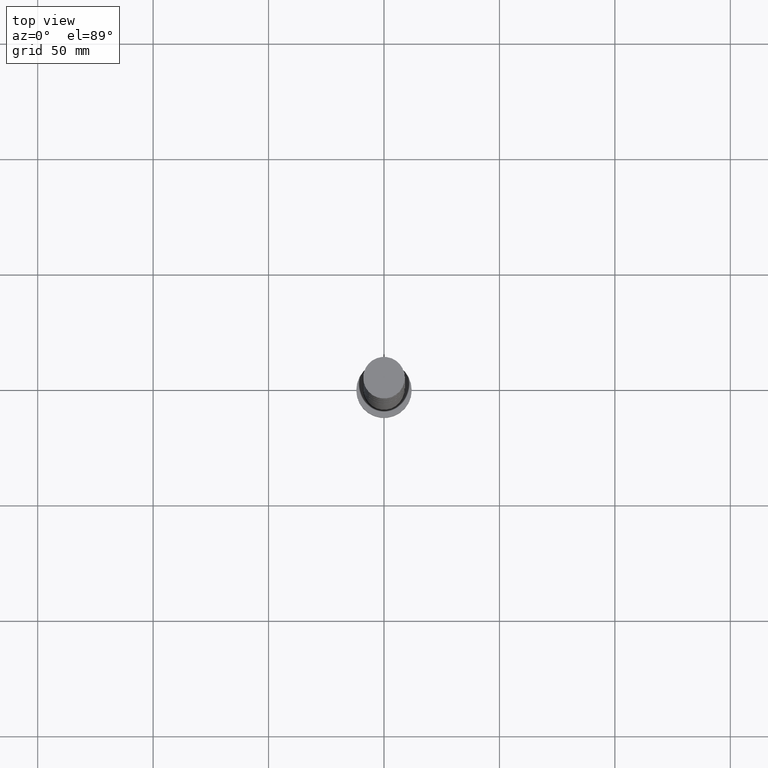
[diagram: clean part render]
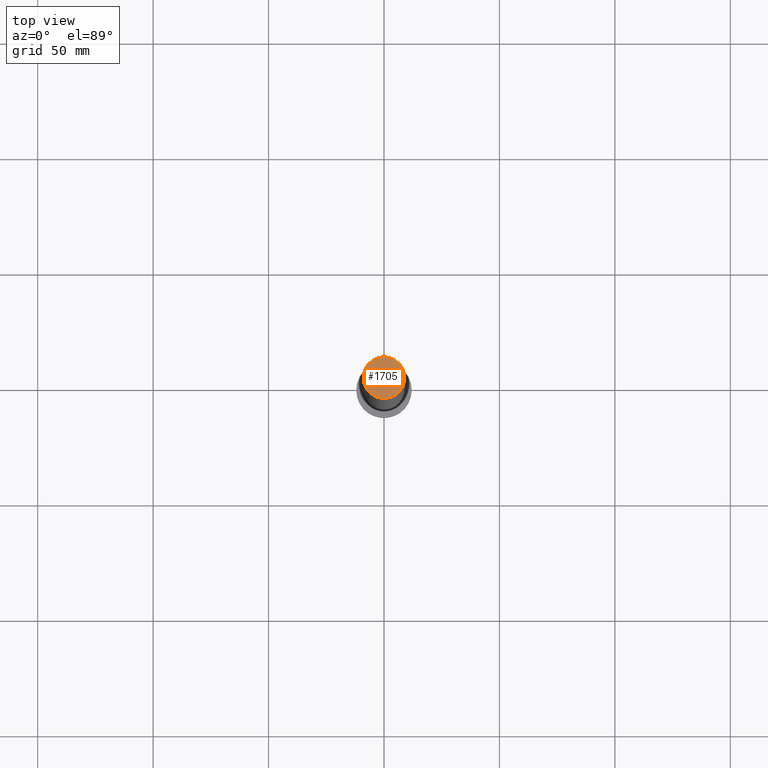
[diagram: same view with one face highlighted and labeled with its STEP entity id]
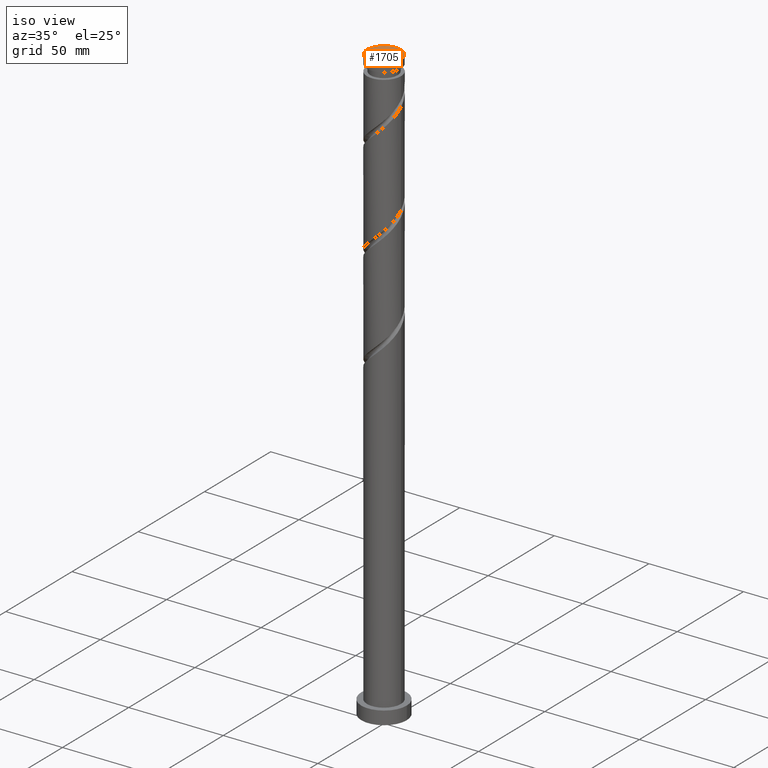
[diagram: same view with one face highlighted and labeled with its STEP entity id]
A machine part, top view. The second image highlights one B-rep face of the part: STEP entity #1705.
A second angle (iso view) of the same face is appended — the face is thin or edge-on in the first view.
In plain terms, the highlighted planar face has unit normal (0, 0, 1).
Its self-contained STEP definition (entity closure, byte-faithful):
#27 = CARTESIAN_POINT ( 'NONE',  ( -9.000000000000000000, 0.000000000000000000, 315.0000000000000000 ) ) ;
#42 = EDGE_CURVE ( 'NONE', #920, #1314, #357, .T. ) ;
#289 = CIRCLE ( 'NONE', #365, 9.000000000000000000 ) ;
#357 = CIRCLE ( 'NONE', #1896, 9.000000000000000000 ) ;
#365 = AXIS2_PLACEMENT_3D ( 'NONE', #1582, #697, #537 ) ;
#453 = DIRECTION ( 'NONE',  ( 0.000000000000000000, 0.000000000000000000, 1.000000000000000000 ) ) ;
#465 = PLANE ( 'NONE',  #1850 ) ;
#537 = DIRECTION ( 'NONE',  ( 1.000000000000000000, 0.000000000000000000, 0.000000000000000000 ) ) ;
#672 = EDGE_CURVE ( 'NONE', #1314, #920, #289, .T. ) ;
#684 = ORIENTED_EDGE ( 'NONE', *, *, #42, .T. ) ;
#697 = DIRECTION ( 'NONE',  ( 0.000000000000000000, 0.000000000000000000, 1.000000000000000000 ) ) ;
#757 = DIRECTION ( 'NONE',  ( 1.000000000000000000, 0.000000000000000000, -0.000000000000000000 ) ) ;
#779 = FACE_OUTER_BOUND ( 'NONE', #1383, .T. ) ;
#845 = DIRECTION ( 'NONE',  ( 1.000000000000000000, 0.000000000000000000, 0.000000000000000000 ) ) ;
#875 = CARTESIAN_POINT ( 'NONE',  ( 0.000000000000000000, 0.000000000000000000, 315.0000000000000000 ) ) ;
#920 = VERTEX_POINT ( 'NONE', #27 ) ;
#988 = DIRECTION ( 'NONE',  ( 0.000000000000000000, 0.000000000000000000, 1.000000000000000000 ) ) ;
#996 = ORIENTED_EDGE ( 'NONE', *, *, #672, .T. ) ;
#1057 = CARTESIAN_POINT ( 'NONE',  ( 0.000000000000000000, 0.000000000000000000, 315.0000000000000000 ) ) ;
#1196 = CARTESIAN_POINT ( 'NONE',  ( 9.000000000000000000, 1.102182119232617714E-15, 315.0000000000000000 ) ) ;
#1314 = VERTEX_POINT ( 'NONE', #1196 ) ;
#1383 = EDGE_LOOP ( 'NONE', ( #684, #996 ) ) ;
#1582 = CARTESIAN_POINT ( 'NONE',  ( 0.000000000000000000, 0.000000000000000000, 315.0000000000000000 ) ) ;
#1705 = ADVANCED_FACE ( 'NONE', ( #779 ), #465, .T. ) ;
#1850 = AXIS2_PLACEMENT_3D ( 'NONE', #1057, #453, #757 ) ;
#1896 = AXIS2_PLACEMENT_3D ( 'NONE', #875, #988, #845 ) ;